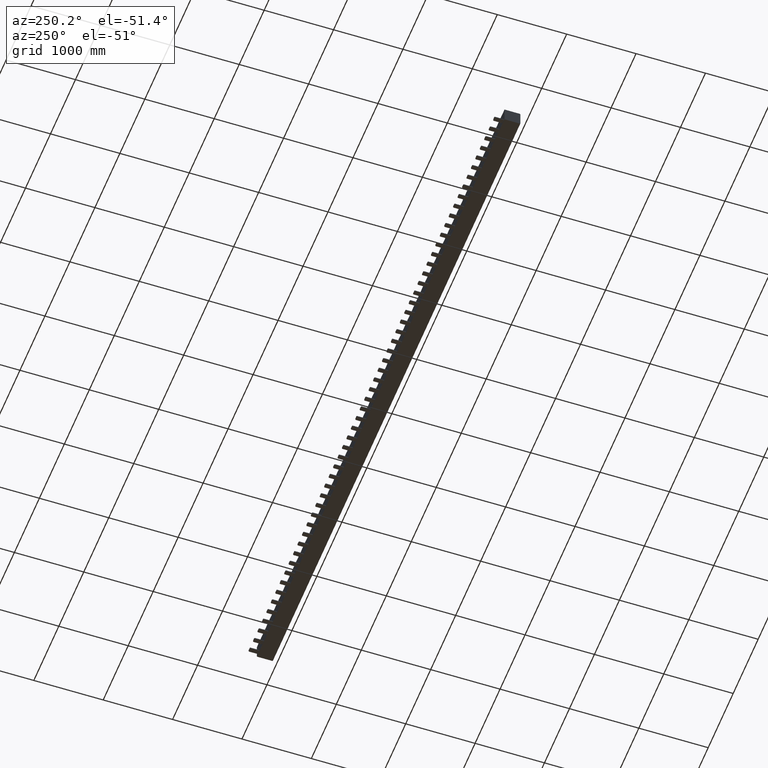
[diagram: clean part render]
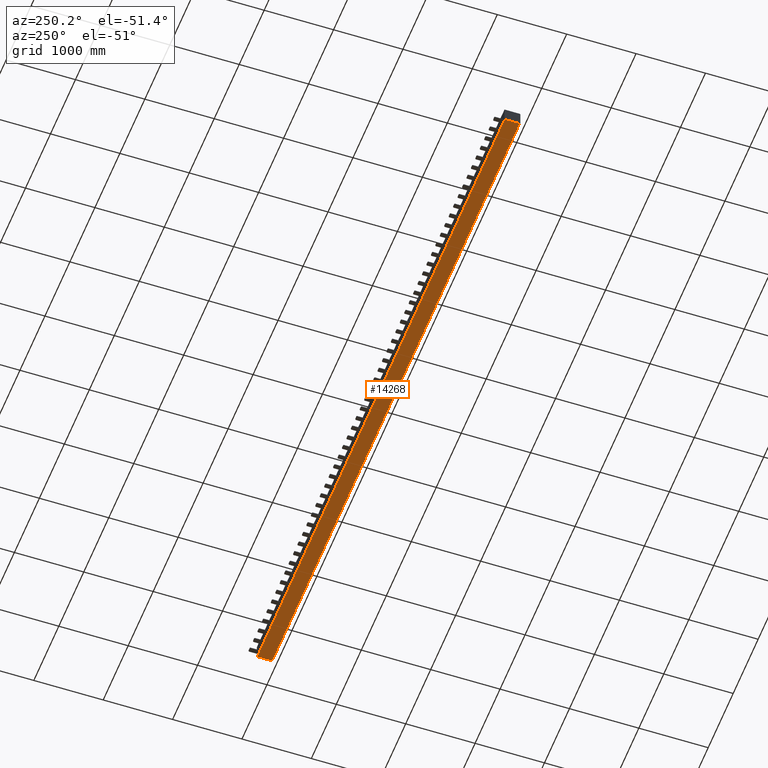
[diagram: same view with one face highlighted and labeled with its STEP entity id]
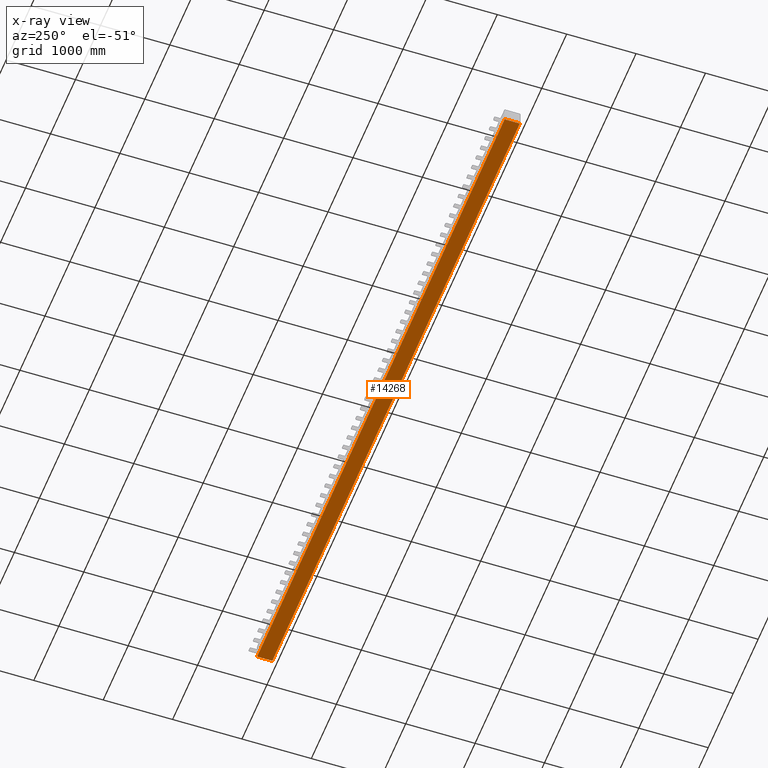
[diagram: x-ray of the same camera — body ghosted, the highlighted face saturated]
A machine part, auxiliary view. The second image highlights one B-rep face of the part: STEP entity #14268.
The next image is the same camera in x-ray: the body ghosted, the highlighted face saturated — about 0% of this face is hidden behind the body in this view.
In plain terms, the highlighted planar face has unit normal (0, 0, -1).
Its self-contained STEP definition (entity closure, byte-faithful):
#13660=CARTESIAN_POINT('',(-211.99830538448663,249.82479942040146,173.78551975212133));
#13661=VERTEX_POINT('',#13660);
#13669=CARTESIAN_POINT('',(-211.99830538448637,32.824799420438929,173.78551975207586));
#13670=VERTEX_POINT('',#13669);
#13671=CARTESIAN_POINT('',(-211.99830538448637,32.824799420438929,173.78551975207569));
#13672=DIRECTION('',(-1.047805E-015,1.0,2.036671E-013));
#13673=VECTOR('',#13672,216.99999999996254);
#13674=LINE('',#13671,#13673);
#13675=EDGE_CURVE('',#13670,#13661,#13674,.T.);
#14128=CARTESIAN_POINT('',(9698.0016946155156,32.824799420448869,173.78551975209575));
#14129=VERTEX_POINT('',#14128);
#14137=CARTESIAN_POINT('',(9698.0016946155156,249.82479942041138,173.78551975213981));
#14138=VERTEX_POINT('',#14137);
#14139=CARTESIAN_POINT('',(9698.0016946155156,249.82479942041138,173.7855197521406));
#14140=DIRECTION('',(0.0,-1.0,-2.036671E-013));
#14141=VECTOR('',#14140,216.99999999996251);
#14142=LINE('',#14139,#14141);
#14143=EDGE_CURVE('',#14138,#14129,#14142,.T.);
#14229=CARTESIAN_POINT('',(-211.99830538448637,32.824799420439021,173.78551975207603));
#14230=DIRECTION('',(1.0,0.0,0.0));
#14231=VECTOR('',#14230,9910.0000000000018);
#14232=LINE('',#14229,#14231);
#14233=EDGE_CURVE('',#13670,#14129,#14232,.T.);
#14248=CARTESIAN_POINT('',(9698.0016946155156,249.82479942041167,173.78551975214003));
#14249=DIRECTION('',(-1.0,0.0,0.0));
#14250=VECTOR('',#14249,9910.0000000000018);
#14251=LINE('',#14248,#14250);
#14252=EDGE_CURVE('',#14138,#13661,#14251,.T.);
#14257=CARTESIAN_POINT('',(-301.99830538448663,252.82479942040086,173.78551975212133));
#14258=DIRECTION('',(2.012863E-015,2.036033E-013,-1.0));
#14259=DIRECTION('',(-1.0,0.0,0.0));
#14260=AXIS2_PLACEMENT_3D('',#14257,#14258,#14259);
#14261=PLANE('',#14260);
#14262=ORIENTED_EDGE('',*,*,#13675,.T.);
#14263=ORIENTED_EDGE('',*,*,#14252,.F.);
#14264=ORIENTED_EDGE('',*,*,#14143,.T.);
#14265=ORIENTED_EDGE('',*,*,#14233,.F.);
#14266=EDGE_LOOP('',(#14262,#14263,#14264,#14265));
#14267=FACE_OUTER_BOUND('',#14266,.T.);
#14268=ADVANCED_FACE('',(#14267),#14261,.T.);